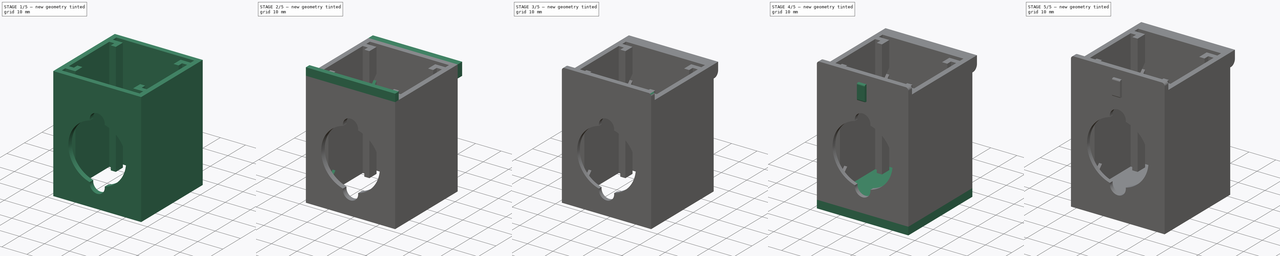
[diagram: build sequence overview — one tinted view per stage of 5, left to right]
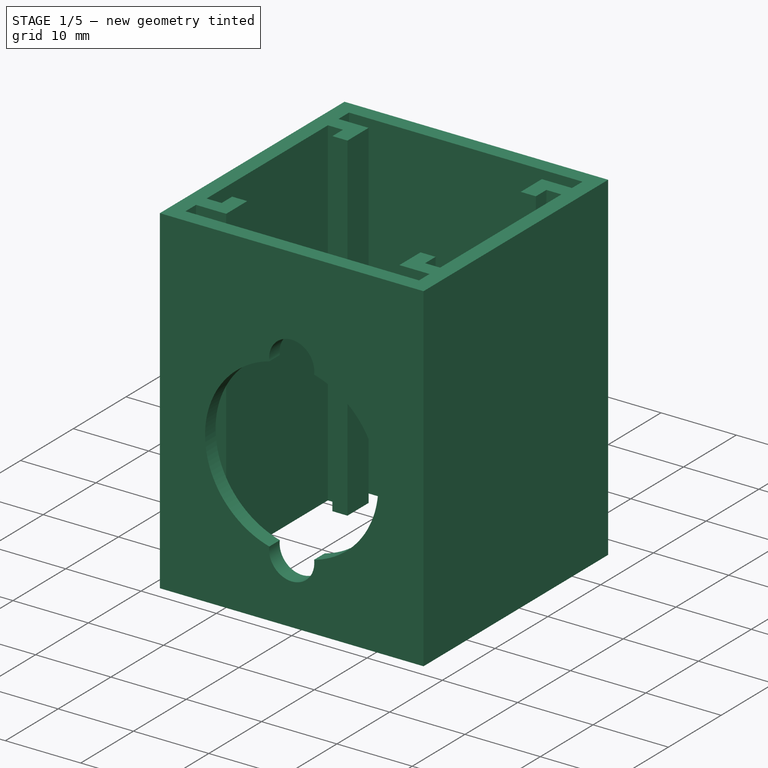
[diagram: stage 1 of 5 — iso view after this stage's code; geometry added in this stage tinted green]
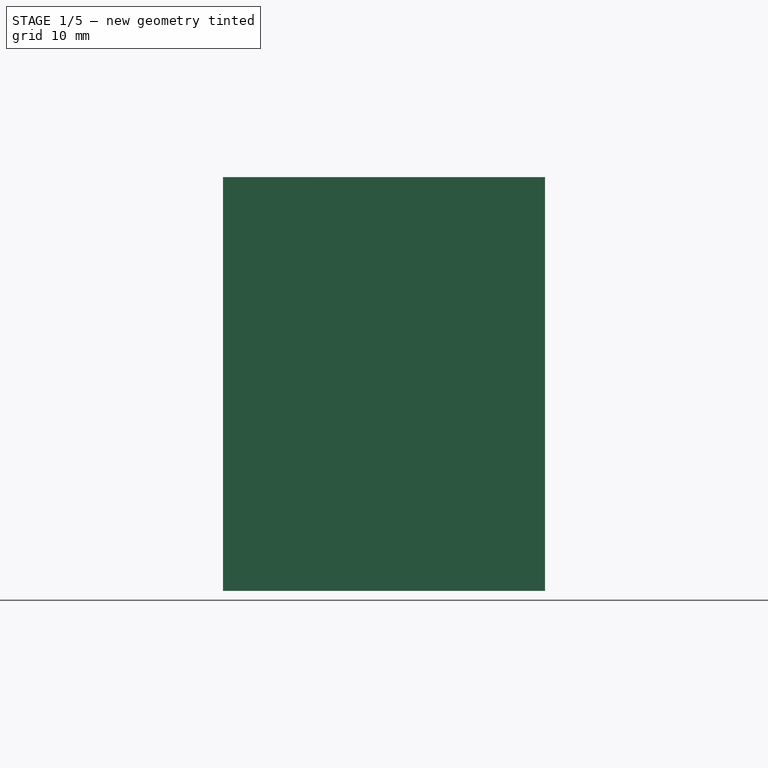
[diagram: stage 1 of 5 — front view after this stage's code; geometry added in this stage tinted green]
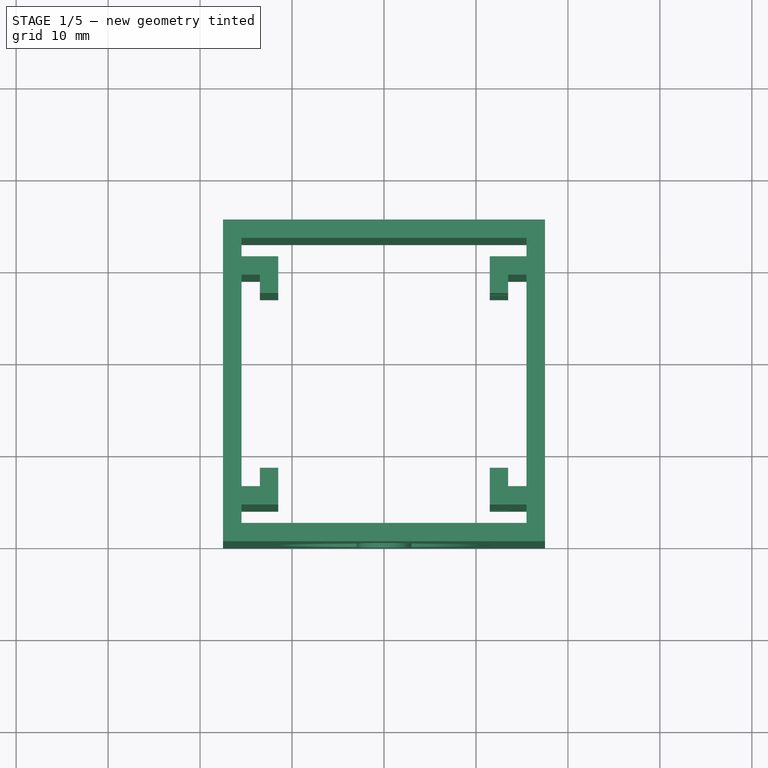
[diagram: stage 1 of 5 — top view after this stage's code; geometry added in this stage tinted green]
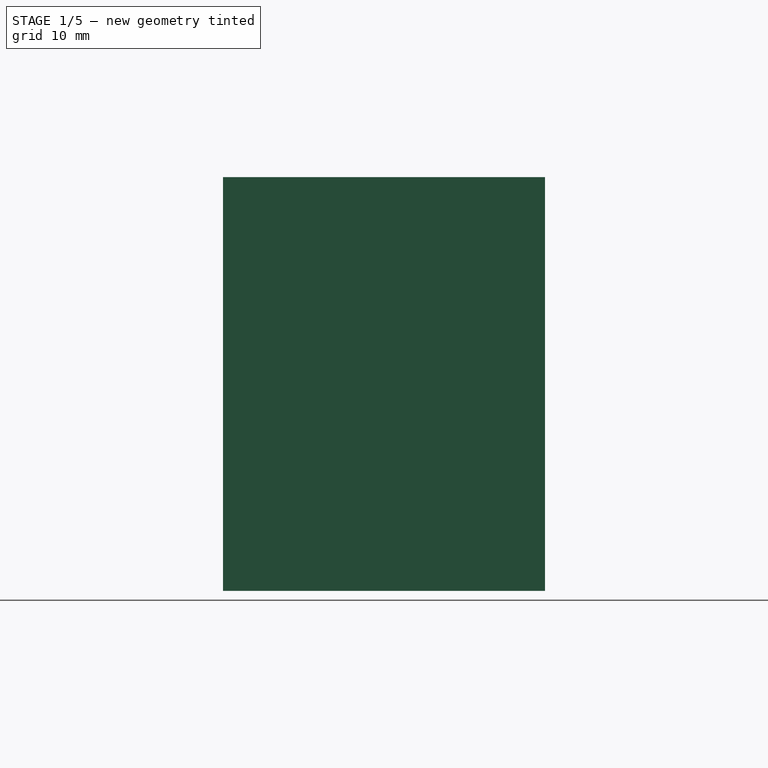
[diagram: stage 1 of 5 — right view after this stage's code; geometry added in this stage tinted green]
FCSTD DOCUMENT  (FreeCAD 0.14R3347 (Git))
Label: light-box
License: CC-BY 3.0
LicenseURL: http://creativecommons.org/licenses/by/3.0/
objects: Sketcher::SketchObject×9, PartDesign::Pad×6, PartDesign::Fillet×4, PartDesign::Pocket×3, Part::Feature×2, PartDesign::Chamfer×1, Part::MultiFuse×1
note: 35 computed .brp shape members not serialized (recipe doc carries the construction recipe); baked Part::Feature solids carry a one-line shape summary decoded from their .brp

FEATURE [Sketcher::SketchObject] Sketch
  sketch-geometry (43):
    g0: LineSegment StartX=-17.5 StartY=0 StartZ=0 EndX=17.5 EndY=0 EndZ=0
    g1: LineSegment StartX=17.5 StartY=0 StartZ=0 EndX=17.5 EndY=35 EndZ=0
    g2: LineSegment StartX=17.5 StartY=35 StartZ=0 EndX=-17.5 EndY=35 EndZ=0
    g3: LineSegment StartX=-17.5 StartY=35 StartZ=0 EndX=-17.5 EndY=0 EndZ=0
    g4: LineSegment StartX=15.5 StartY=33 StartZ=0 EndX=-15.5 EndY=33 EndZ=0
    g5: LineSegment [constr] StartX=-15.5 StartY=2 StartZ=0 EndX=-17.5 EndY=0 EndZ=0
    g6: LineSegment [constr] StartX=15.5 StartY=2 StartZ=0 EndX=17.5 EndY=0 EndZ=0
    g7: LineSegment [constr] StartX=-15.5 StartY=33 StartZ=0 EndX=-17.5 EndY=35 EndZ=0
    g8: LineSegment [constr] StartX=15.5 StartY=33 StartZ=0 EndX=17.5 EndY=35 EndZ=0
    g9: LineSegment StartX=-15.5 StartY=31 StartZ=0 EndX=-11.5 EndY=31 EndZ=0
    g10: LineSegment StartX=-11.5 StartY=31 StartZ=0 EndX=-11.5 EndY=27 EndZ=0
    g11: LineSegment StartX=-11.5 StartY=27 StartZ=0 EndX=-13.5 EndY=27 EndZ=0
    g12: LineSegment StartX=-13.5 StartY=27 StartZ=0 EndX=-13.5 EndY=29 EndZ=0
    g13: LineSegment StartX=-13.5 StartY=29 StartZ=0 EndX=-15.5 EndY=29 EndZ=0
    g14: LineSegment StartX=-15.5 StartY=31 StartZ=0 EndX=-15.5 EndY=33 EndZ=0
    g15: LineSegment [constr] StartX=-13.5 StartY=29 StartZ=0 EndX=-13.5 EndY=31 EndZ=0
    g16: LineSegment StartX=15.5 StartY=33 StartZ=0 EndX=15.5 EndY=31 EndZ=0
    g17: LineSegment StartX=15.5 StartY=31 StartZ=0 EndX=13.5 EndY=31 EndZ=0
    g18: LineSegment StartX=13.5 StartY=31 StartZ=0 EndX=11.5 EndY=31 EndZ=0
    g19: LineSegment StartX=11.5 StartY=31 StartZ=0 EndX=11.5 EndY=29 EndZ=0
    g20: LineSegment StartX=11.5 StartY=29 StartZ=0 EndX=11.5 EndY=27 EndZ=0
    g21: LineSegment StartX=11.5 StartY=27 StartZ=0 EndX=13.5 EndY=27 EndZ=0
    g22: LineSegment StartX=13.5 StartY=27 StartZ=0 EndX=13.5 EndY=29 EndZ=0
    g23: LineSegment StartX=13.5 StartY=29 StartZ=0 EndX=15.5 EndY=29 EndZ=0
    g24: LineSegment StartX=15.5 StartY=29 StartZ=0 EndX=15.5 EndY=6 EndZ=0
    g25: LineSegment StartX=15.5 StartY=6 StartZ=0 EndX=13.5 EndY=6 EndZ=0
    g26: LineSegment StartX=13.5 StartY=6 StartZ=0 EndX=13.5 EndY=8 EndZ=0
    g27: LineSegment StartX=13.5 StartY=8 StartZ=0 EndX=11.5 EndY=8 EndZ=0
    g28: LineSegment StartX=11.5 StartY=4 StartZ=0 EndX=15.5 EndY=4 EndZ=0
    g29: LineSegment StartX=15.5 StartY=4 StartZ=0 EndX=15.5 EndY=2 EndZ=0
    g30: LineSegment StartX=-15.5 StartY=29 StartZ=0 EndX=-15.5 EndY=6 EndZ=0
    g31: LineSegment StartX=-15.5 StartY=6 StartZ=0 EndX=-13.5 EndY=6 EndZ=0
    g32: LineSegment StartX=-13.5 StartY=6 StartZ=0 EndX=-13.5 EndY=8 EndZ=0
    g33: LineSegment StartX=-13.5 StartY=8 StartZ=0 EndX=-11.5 EndY=8 EndZ=0
    g34: LineSegment StartX=-11.5 StartY=8 StartZ=0 EndX=-11.5 EndY=6 EndZ=0
    g35: LineSegment StartX=-11.5 StartY=6 StartZ=0 EndX=-11.5 EndY=4 EndZ=0
    g36: LineSegment StartX=-11.5 StartY=4 StartZ=0 EndX=-13.5 EndY=4 EndZ=0
    g37: LineSegment StartX=-13.5 StartY=4 StartZ=0 EndX=-15.5 EndY=4 EndZ=0
    g38: LineSegment StartX=-15.5 StartY=4 StartZ=0 EndX=-15.5 EndY=2 EndZ=0
    g39: LineSegment StartX=11.5 StartY=8 StartZ=0 EndX=11.5 EndY=6 EndZ=0
    g40: LineSegment StartX=11.5 StartY=6 StartZ=0 EndX=11.5 EndY=4 EndZ=0
    g41: LineSegment StartX=-15.5 StartY=2 StartZ=0 EndX=15.5 EndY=2 EndZ=0
    g42: LineSegment [constr] StartX=-15.5 StartY=29 StartZ=0 EndX=-17.5 EndY=29 EndZ=0
  constraints (125):
    c: Coincident(g0,g1)
    c: Coincident(g1,g2)
    c: Coincident(g2,g3)
    c: Coincident(g3,g0)
    c: Horizontal(g2)
    c: Vertical(g1)
    c: Vertical(g3)
    c: PointOnObject(g0,g-1)
    c: DistanceX(g0) = 35
    c: DistanceY(g3) = -35
    c: Horizontal(g4)
    c: Coincident(g5,g0)
    c: Coincident(g6,g0)
    c: Coincident(g7,g4)
    c: Coincident(g7,g2)
    c: Coincident(g8,g1)
    c: Equal(g7,g8)
    c: Equal(g8,g6)
    c: Equal(g6,g5)
    c: Symmetric(g0,g0,g-2)
    c: Horizontal(g9)
    c: Coincident(g9,g10)
    c: Vertical(g10)
    c: Coincident(g10,g11)
    c: Horizontal(g11)
    c: Coincident(g11,g12)
    c: Coincident(g12,g13)
    c: Horizontal(g13)
    c: Vertical(g12)
    c: Equal(g13,g12)
    c: Equal(g12,g11)
    c: DistanceX(g11) = -2
    c: Coincident(g14,g9)
    c: Coincident(g14,g4)
    c: Vertical(g14)
    c: Equal(g14,g13)
    c: Coincident(g15,g12)
    c: PointOnObject(g15,g9)
    c: Vertical(g15)
    c: Equal(g15,g13)
    c: DistanceY(g4,g2) = 2
    c: Coincident(g4,g16)
    c: Vertical(g16)
    c: Coincident(g16,g17)
    c: Horizontal(g17)
    c: Coincident(g17,g18)
    c: Horizontal(g18)
    c: Coincident(g18,g19)
    c: Coincident(g19,g20)
    c: Vertical(g20)
    c: Coincident(g20,g21)
    c: Horizontal(g21)
    c: Coincident(g21,g22)
    c: Vertical(g22)
    c: Coincident(g22,g23)
    c: Horizontal(g23)
    c: Coincident(g23,g24)
    c: Vertical(g24)
    c: Coincident(g24,g25)
    c: Coincident(g25,g26)
    c: Vertical(g26)
    c: Coincident(g26,g27)
    c: Horizontal(g27)
    c: Horizontal(g28)
    c: Coincident(g28,g29)
    c: Vertical(g29)
    c: Horizontal(g25)
    c: Equal(g27,g25)
    c: Equal(g25,g26)
    c: Equal(g26,g21)
    c: Equal(g21,g23)
    c: Equal(g23,g22)
    c: Equal(g22,g20)
    c: Equal(g20,g19)
    c: Equal(g19,g18)
    c: Equal(g18,g17)
    c: Equal(g17,g16)
    c: Equal(g16,g11)
    c: Vertical(g19)
    c: Coincident(g4,g8)
    c: Equal(g29,g26)
    c: Coincident(g13,g30)
    c: Vertical(g30)
    c: Coincident(g30,g31)
    c: Horizontal(g31)
    c: Coincident(g31,g32)
    c: Coincident(g32,g33)
    c: Horizontal(g33)
    c: Coincident(g33,g34)
    c: Coincident(g34,g35)
    c: Vertical(g35)
    c: Coincident(g35,g36)
    c: Horizontal(g36)
    c: Coincident(g36,g37)
    c: Horizontal(g37)
    c: Coincident(g37,g38)
    c: Vertical(g38)
    c: Vertical(g34)
    c: Vertical(g32)
    c: Equal(g33,g32)
    c: Equal(g32,g31)
    c: Equal(g31,g37)
    c: Equal(g37,g36)
    c: Equal(g36,g35)
    c: Equal(g35,g34)
    c: Equal(g34,g11)
    c: Equal(g30,g24)
    c: Coincident(g27,g39)
    c: Vertical(g39)
    c: Coincident(g39,g40)
    c: Coincident(g40,g28)
    c: Vertical(g40)
    c: Equal(g40,g39)
    c: Equal(g39,g27)
    c: Equal(g38,g11)
    c: Coincident(g38,g5)
    c: Coincident(g6,g29)
    c: Coincident(g41,g6)
    c: Horizontal(g41)
    c: Coincident(g41,g5)
    c: Equal(g41,g4)
    c: Coincident(g42,g13)
    c: PointOnObject(g42,g3)
    c: Horizontal(g42)
    c: Equal(g42,g11)
FEATURE [PartDesign::Pad] Pad
  Length = 45
  Length2 = 100
  Sketch = -> Sketch
  Type = 0
FEATURE [PartDesign::Pocket] Pocket
  Length = 2
  Sketch = -> Sketch002
  Type = 0
FEATURE [Sketcher::SketchObject] Sketch004
  Placement = pos=(11.5,0,0) rot=(0.57735,-0.57735,-0.57735;2.0944rad)
  Support = -> Pocket [Face39]
  sketch-geometry (9):
    g0: LineSegment StartX=-8 StartY=12.5 StartZ=0 EndX=-4 EndY=8.5 EndZ=0
    g1: LineSegment StartX=-4 StartY=8.5 StartZ=0 EndX=-4 EndY=6 EndZ=0
    g2: LineSegment StartX=-4 StartY=6 StartZ=0 EndX=-8 EndY=10 EndZ=0
    g3: LineSegment StartX=-8 StartY=10 StartZ=0 EndX=-8 EndY=12.5 EndZ=0
    g4: LineSegment StartX=-31 StartY=35.5 StartZ=0 EndX=-27 EndY=31.5 EndZ=0
    g5: LineSegment StartX=-27 StartY=31.5 StartZ=0 EndX=-27 EndY=29 EndZ=0
    g6: LineSegment StartX=-27 StartY=29 StartZ=0 EndX=-31 EndY=33 EndZ=0
    g7: LineSegment StartX=-31 StartY=33 StartZ=0 EndX=-31 EndY=35.5 EndZ=0
    g8: LineSegment [constr] StartX=-4 StartY=6 StartZ=0 EndX=-31 EndY=33 EndZ=0
  constraints (22):
    c: Coincident(g0,g1)
    c: Coincident(g1,g2)
    c: Coincident(g2,g3)
    c: Coincident(g3,g0)
    c: Angle(g3,g0) = 0.785398
    c: DistanceY(g-1,g2) = 10
    c: Parallel(g2,g0)
    c: DistanceX(g0,g0) = -4
    c: DistanceY(g1,g0) = 2.5
    c: DistanceX(g-1,g0) = -8
    c: Coincident(g4,g5)
    c: Coincident(g5,g6)
    c: Coincident(g6,g7)
    c: Coincident(g4,g7)
    c: Equal(g4,g6)
    c: Angle(g7,g4) = 0.785398
    c: Equal(g7,g1)
    c: Equal(g6,g2)
    c: DistanceX(g-1,g4) = -31
    c: Coincident(g8,g1)
    c: Coincident(g8,g6)
    c: Parallel(g8,g4)
FEATURE [PartDesign::Pocket] Pocket001
  Length = 2
  Sketch = -> Sketch004
  Type = 0
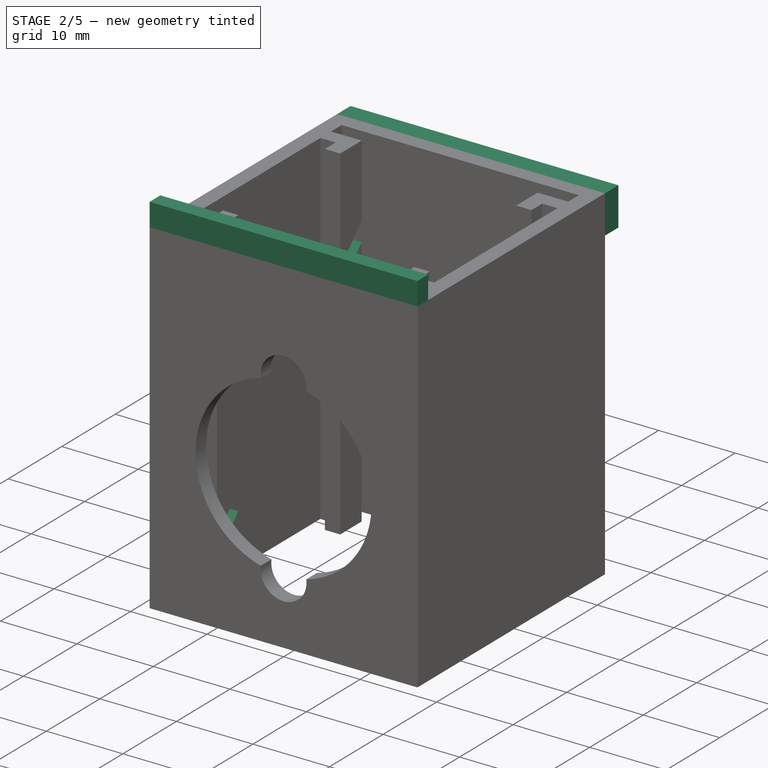
[diagram: stage 2 of 5 — iso view after this stage's code; geometry added in this stage tinted green]
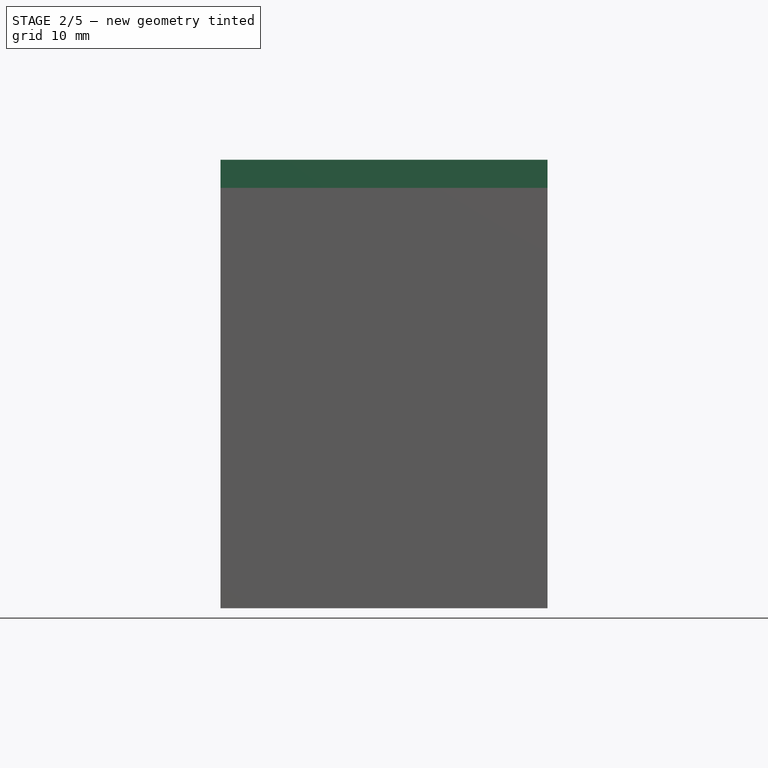
[diagram: stage 2 of 5 — front view after this stage's code; geometry added in this stage tinted green]
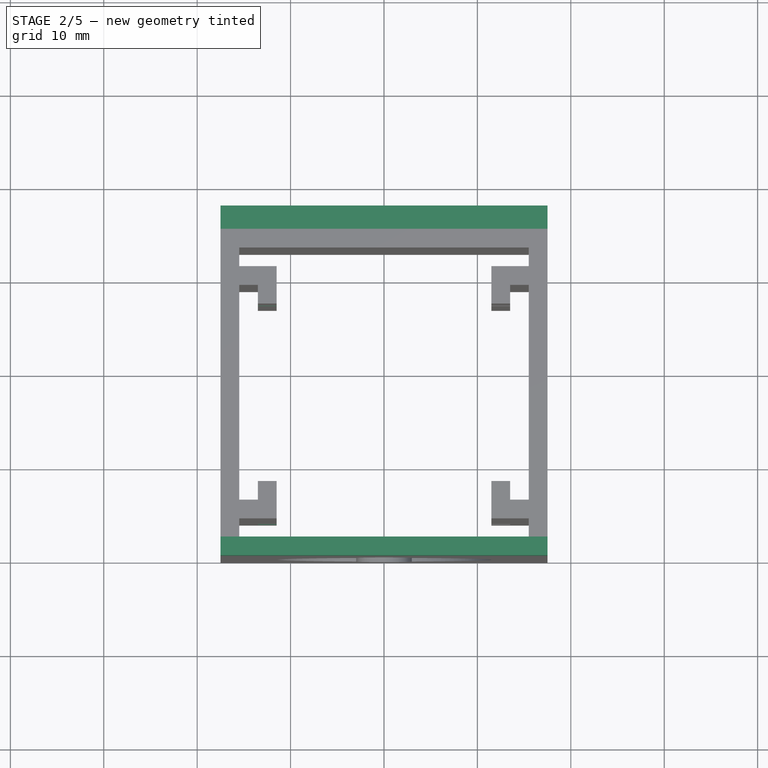
[diagram: stage 2 of 5 — top view after this stage's code; geometry added in this stage tinted green]
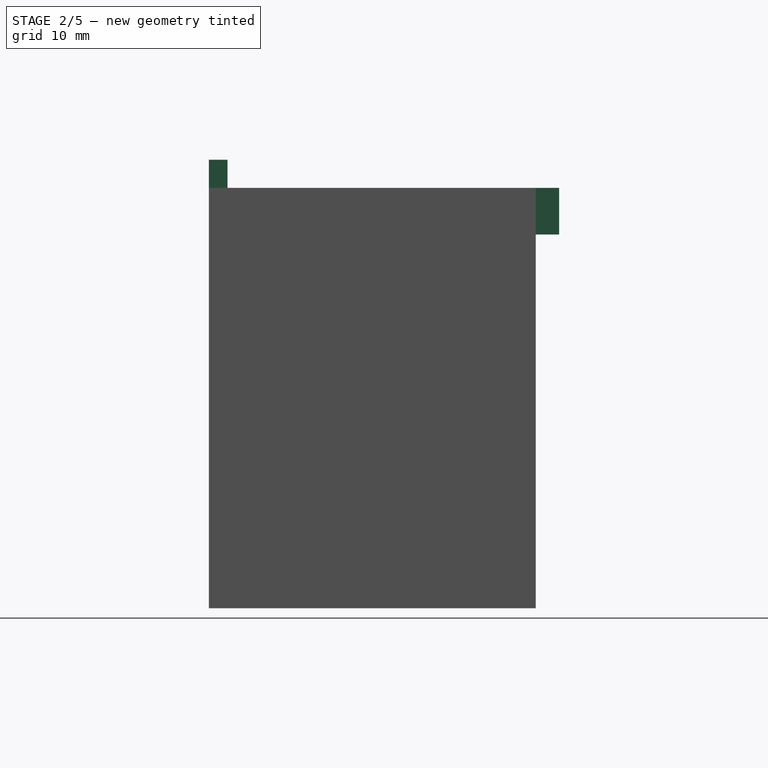
[diagram: stage 2 of 5 — right view after this stage's code; geometry added in this stage tinted green]
FEATURE [Sketcher::SketchObject] Sketch003
  Placement = pos=(-11.5,0,0) rot=(0.57735,0.57735,0.57735;2.0944rad)
  Support = -> Pocket001 [Face14]
  sketch-geometry (9):
    g0: LineSegment StartX=4 StartY=8.5 StartZ=0 EndX=8 EndY=12.5 EndZ=0
    g1: LineSegment StartX=8 StartY=12.5 StartZ=0 EndX=8 EndY=10 EndZ=0
    g2: LineSegment StartX=8 StartY=10 StartZ=0 EndX=4 EndY=6 EndZ=0
    g3: LineSegment StartX=4 StartY=6 StartZ=0 EndX=4 EndY=8.5 EndZ=0
    g4: LineSegment StartX=27 StartY=31.5 StartZ=0 EndX=31 EndY=35.5 EndZ=0
    g5: LineSegment StartX=31 StartY=35.5 StartZ=0 EndX=31 EndY=33 EndZ=0
    g6: LineSegment StartX=31 StartY=33 StartZ=0 EndX=27 EndY=29 EndZ=0
    g7: LineSegment StartX=27 StartY=29 StartZ=0 EndX=27 EndY=31.5 EndZ=0
    g8: LineSegment [constr] StartX=8 StartY=10 StartZ=0 EndX=27 EndY=29 EndZ=0
  constraints (22):
    c: Coincident(g0,g1)
    c: Coincident(g1,g2)
    c: Coincident(g2,g3)
    c: Coincident(g3,g0)
    c: Angle(g3,g0) = 2.35619
    c: DistanceY(g-1,g2) = 6
    c: Parallel(g2,g0)
    c: DistanceX(g0,g0) = -4
    c: DistanceY(g1,g0) = 2.5
    c: DistanceX(g-1,g0) = 4
    c: Coincident(g4,g5)
    c: Coincident(g5,g6)
    c: Coincident(g6,g7)
    c: Coincident(g4,g7)
    c: Equal(g4,g6)
    c: Angle(g7,g4) = 2.35619
    c: Equal(g7,g1)
    c: Equal(g6,g2)
    c: DistanceX(g-1,g4) = 27
    c: Coincident(g8,g1)
    c: Coincident(g8,g6)
    c: Parallel(g8,g4)
FEATURE [PartDesign::Pocket] Pocket002
  Length = 2
  Sketch = -> Sketch003
  Type = 0
FEATURE [Sketcher::SketchObject] Sketch007
  ExternalGeometry = -> [Pocket002]
  Placement = pos=(0,35,0) rot=(0,0.707107,0.707107;3.14159rad)
  Support = -> Pocket002 [Face10]
  sketch-geometry (4):
    g0: LineSegment StartX=-17.5 StartY=45 StartZ=0 EndX=17.5 EndY=45 EndZ=0
    g1: LineSegment StartX=17.5 StartY=45 StartZ=0 EndX=17.5 EndY=40 EndZ=0
    g2: LineSegment StartX=17.5 StartY=40 StartZ=0 EndX=-17.5 EndY=40 EndZ=0
    g3: LineSegment StartX=-17.5 StartY=40 StartZ=0 EndX=-17.5 EndY=45 EndZ=0
  constraints (11):
    c: Coincident(g0,g1)
    c: Coincident(g1,g2)
    c: Coincident(g2,g3)
    c: Coincident(g3,g0)
    c: Horizontal(g0)
    c: Horizontal(g2)
    c: Vertical(g1)
    c: Vertical(g3)
    c: Coincident(g0,g-3)
    c: Coincident(g0,g-3)
    c: DistanceY(g1) = -5
FEATURE [PartDesign::Pad] Pad004
  Length = 2.5
  Length2 = 100
  Sketch = -> Sketch007
  Type = 0
FEATURE [Sketcher::SketchObject] Sketch008
  ExternalGeometry = -> [Pad004]
  Placement = pos=(0,0,45) rot=(0,0,1;0rad)
  Support = -> Pad004 [Face4]
  sketch-geometry (4):
    g0: LineSegment StartX=-17.5 StartY=2 StartZ=0 EndX=17.5 EndY=2 EndZ=0
    g1: LineSegment StartX=17.5 StartY=2 StartZ=0 EndX=17.5 EndY=0 EndZ=0
    g2: LineSegment StartX=17.5 StartY=0 StartZ=0 EndX=-17.5 EndY=0 EndZ=0
    g3: LineSegment StartX=-17.5 StartY=0 StartZ=0 EndX=-17.5 EndY=2 EndZ=0
  constraints (11):
    c: Coincident(g0,g1)
    c: Coincident(g1,g2)
    c: Coincident(g2,g3)
    c: Coincident(g3,g0)
    c: Horizontal(g0)
    c: Horizontal(g2)
    c: Vertical(g1)
    c: Vertical(g3)
    c: Coincident(g2,g-3)
    c: Coincident(g1,g-4)
    c: DistanceY(g3) = 2
FEATURE [PartDesign::Pad] Pad005
  Length = 3
  Length2 = 100
  Sketch = -> Sketch008
  Type = 0
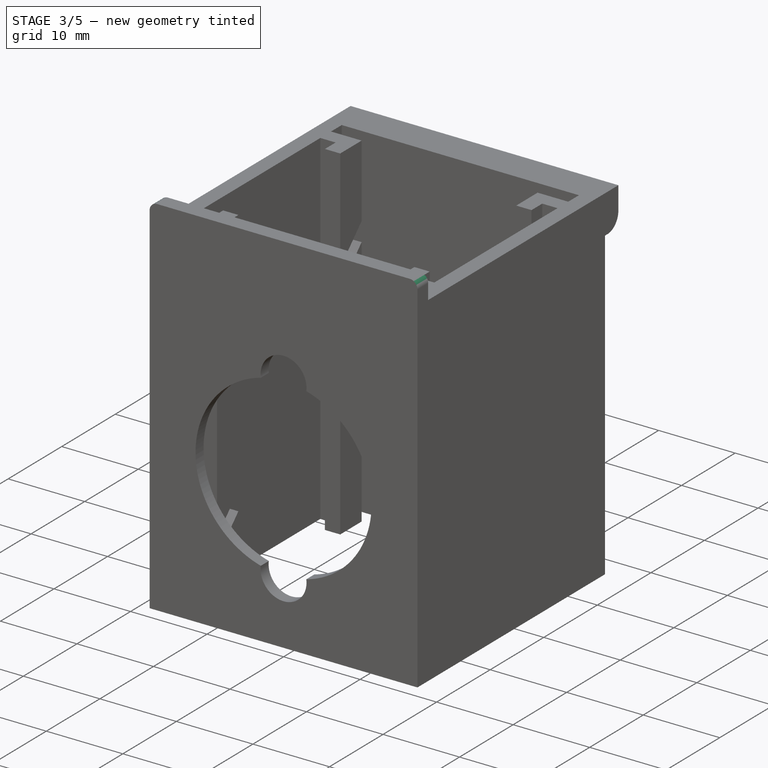
[diagram: stage 3 of 5 — iso view after this stage's code; geometry added in this stage tinted green]
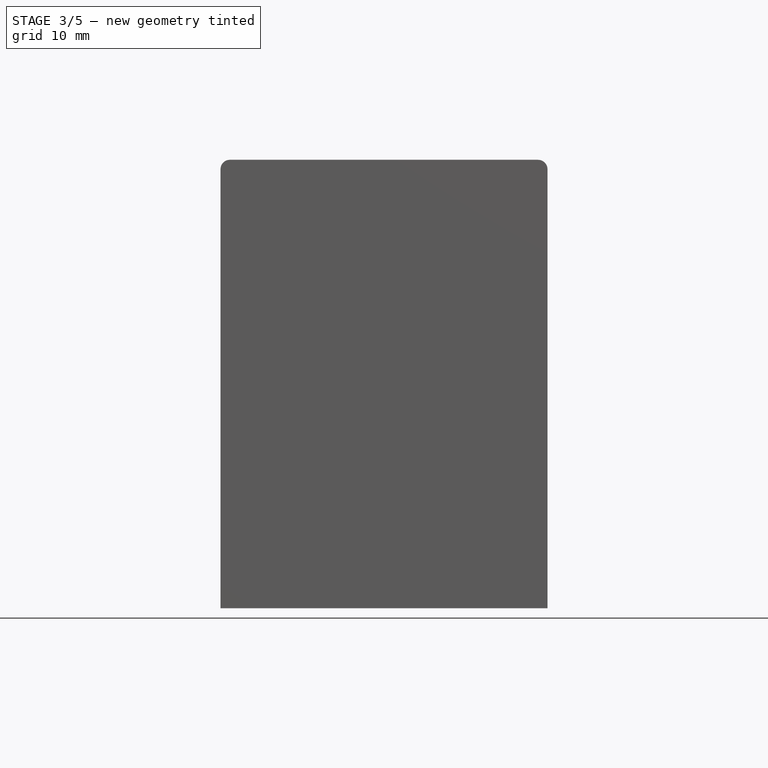
[diagram: stage 3 of 5 — front view after this stage's code; geometry added in this stage tinted green]
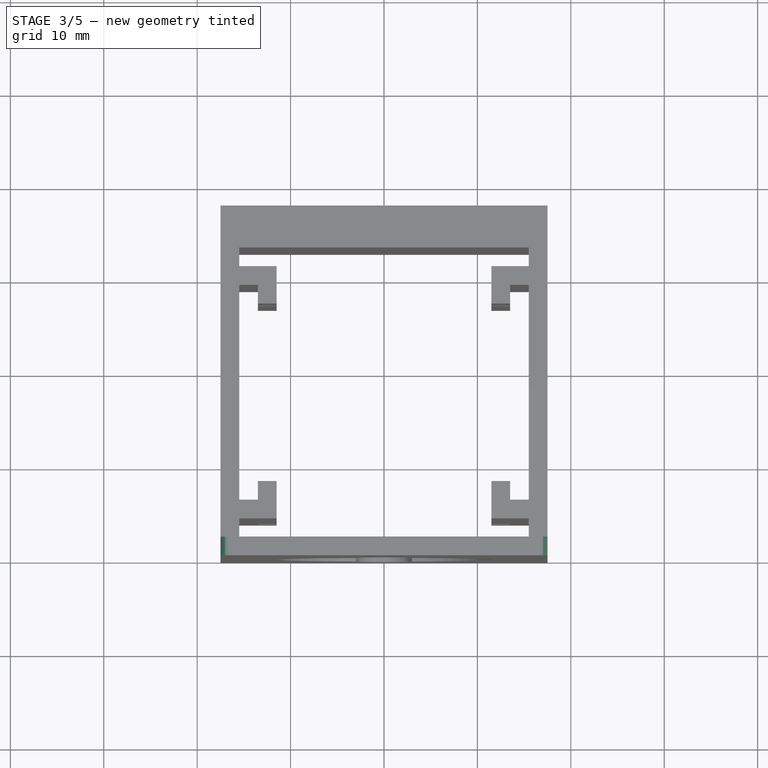
[diagram: stage 3 of 5 — top view after this stage's code; geometry added in this stage tinted green]
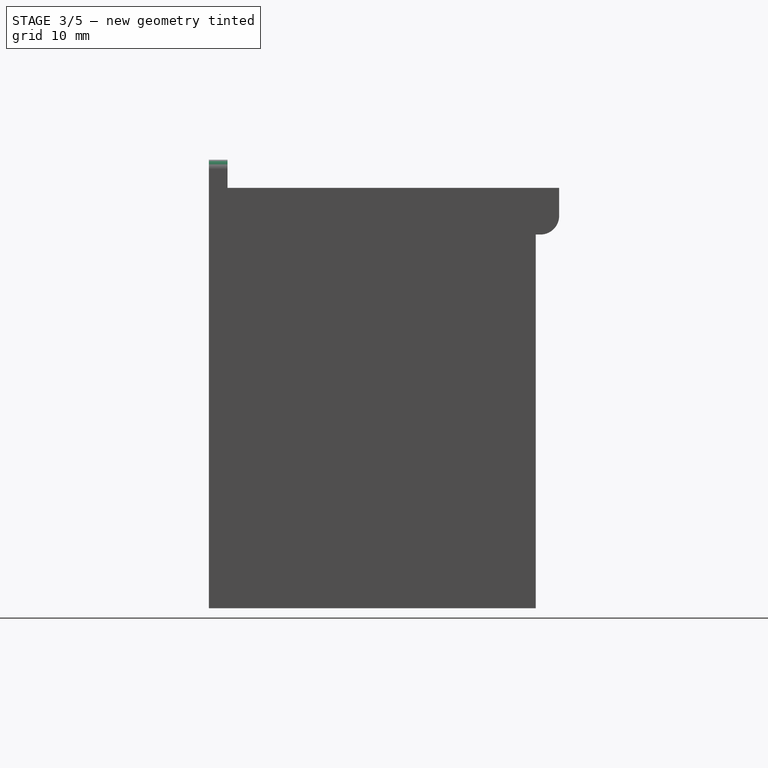
[diagram: stage 3 of 5 — right view after this stage's code; geometry added in this stage tinted green]
FEATURE [PartDesign::Fillet] Fillet
  Base = -> Pad005 [Edge177]
  Radius = 2
FEATURE [PartDesign::Fillet] Fillet001
  Base = -> Fillet [Edge65,Edge186]
  Radius = 1
FEATURE [PartDesign::Chamfer] Chamfer
  Base = -> Fillet001 [Edge63,Edge66,Edge65,Edge64]
  Size = 0.5
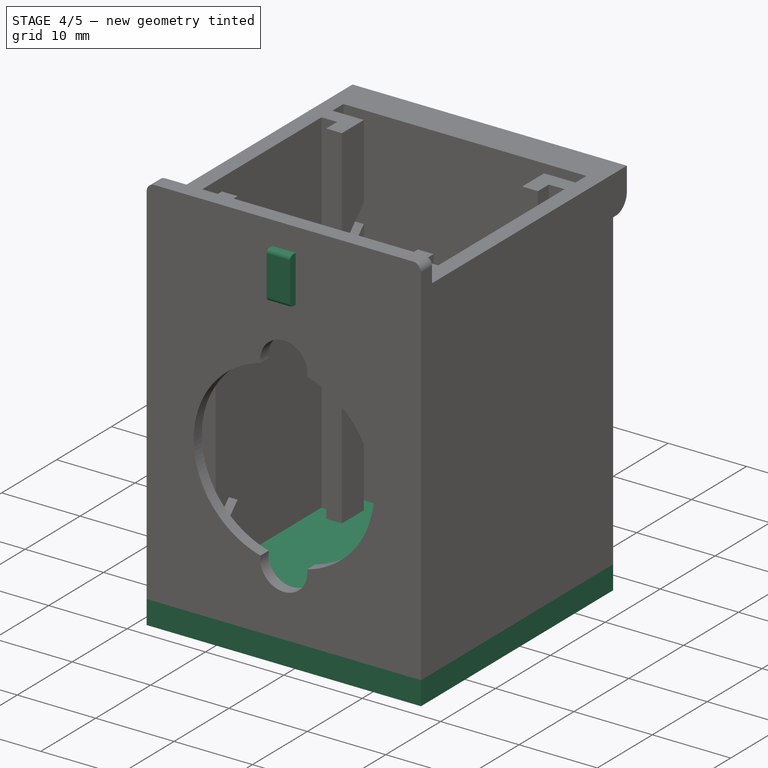
[diagram: stage 4 of 5 — iso view after this stage's code; geometry added in this stage tinted green]
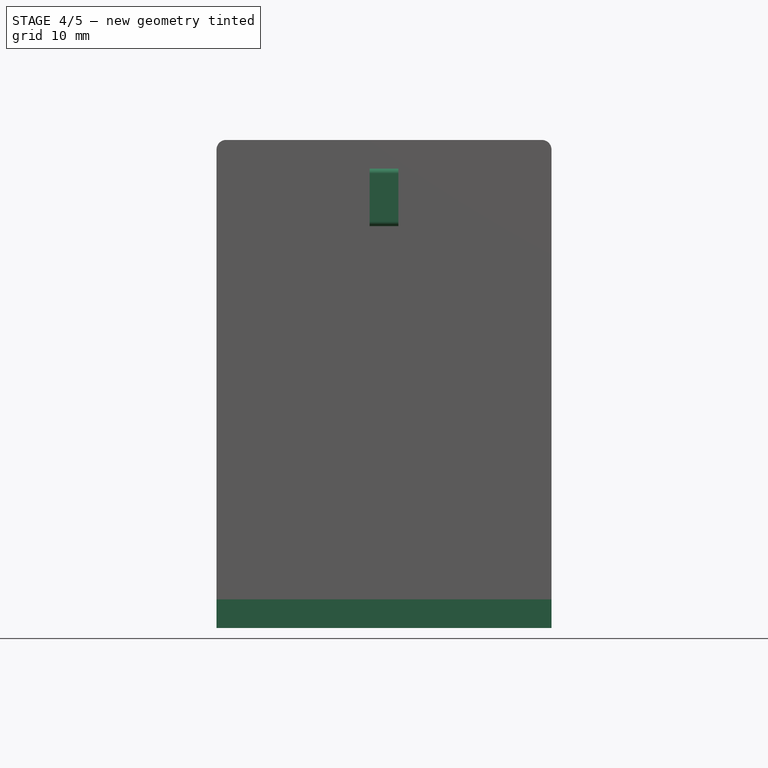
[diagram: stage 4 of 5 — front view after this stage's code; geometry added in this stage tinted green]
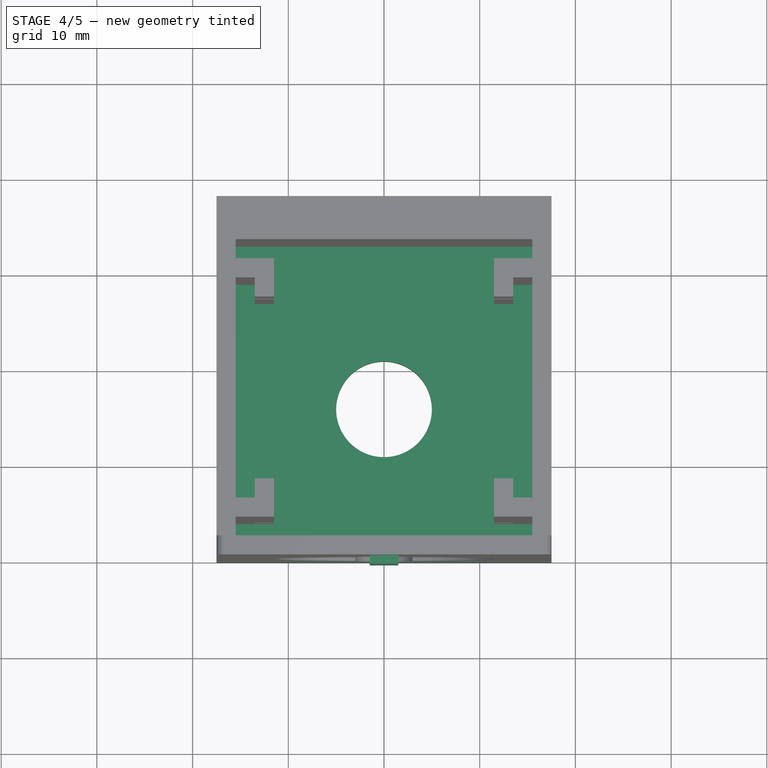
[diagram: stage 4 of 5 — top view after this stage's code; geometry added in this stage tinted green]
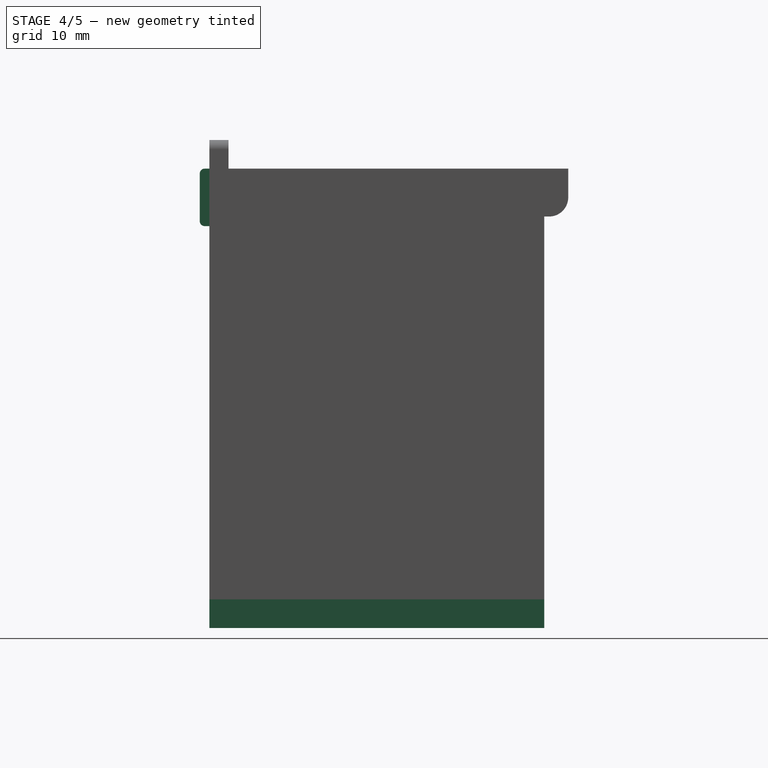
[diagram: stage 4 of 5 — right view after this stage's code; geometry added in this stage tinted green]
FEATURE [Sketcher::SketchObject] Sketch002
  Placement = pos=(0,0,0) rot=(1,0,0;1.5708rad)
  Support = -> Pad [Face1]
  sketch-geometry (4):
    g0: ArcOfCircle CenterX=0 CenterY=20 CenterZ=0 NormalX=0 NormalY=0 NormalZ=1 Radius=11.5 StartAngle=4.974 EndAngle=7.59237
    g1: ArcOfCircle CenterX=0 CenterY=31.5 CenterZ=0 NormalX=0 NormalY=0 NormalZ=1 Radius=3 StartAngle=6.15238 EndAngle=9.55559
    g2: ArcOfCircle CenterX=0 CenterY=8.5 CenterZ=0 NormalX=0 NormalY=0 NormalZ=1 Radius=3 StartAngle=3.01079 EndAngle=6.41399
    g3: ArcOfCircle CenterX=0 CenterY=20 CenterZ=0 NormalX=0 NormalY=0 NormalZ=1 Radius=11.5 StartAngle=1.83241 EndAngle=4.45077
  constraints (12):
    c: PointOnObject(g0,g-2)
    c: DistanceY(g-1,g0) = 20
    c: PointOnObject(g1,g-2)
    c: Coincident(g3,g2)
    c: Coincident(g0,g2)
    c: Equal(g0,g3)
    c: Coincident(g0,g1)
    c: Coincident(g3,g1)
    c: Coincident(g0,g3)
    c: PointOnObject(g2,g-2)
    c: Symmetric(g1,g2,g0)
    c: DistanceY(g0,g1) = 11.5
FEATURE [Sketcher::SketchObject] Sketch005
  Placement = pos=(0,0,0) rot=(1,0,0;3.14159rad)
  sketch-geometry (5):
    g0: LineSegment StartX=-17.5 StartY=0 StartZ=0 EndX=17.5 EndY=0 EndZ=0
    g1: LineSegment StartX=17.5 StartY=0 StartZ=0 EndX=17.5 EndY=-35 EndZ=0
    g2: LineSegment StartX=17.5 StartY=-35 StartZ=0 EndX=-17.5 EndY=-35 EndZ=0
    g3: LineSegment StartX=-17.5 StartY=-35 StartZ=0 EndX=-17.5 EndY=0 EndZ=0
    g4: Circle CenterX=0 CenterY=-16 CenterZ=0 NormalX=0 NormalY=0 NormalZ=1 Radius=5
  constraints (8):
    c: Coincident(g0,g1)
    c: Coincident(g1,g2)
    c: Coincident(g2,g3)
    c: Coincident(g3,g0)
    c: PointOnObject(g0,g-1)
    c: Symmetric(g0,g0,g-2)
    c: PointOnObject(g4,g-2)
    c: DistanceY(g-1,g4) = -16
FEATURE [PartDesign::Pad] Pad002
  Length = 3
  Length2 = 100
  Placement = pos=(0,0,0) rot=(1,0,0;3.14159rad)
  Sketch = -> Sketch005
  Type = 0
FEATURE [Sketcher::SketchObject] Sketch009
  ExternalGeometry = -> [Chamfer]
  Placement = pos=(0,0,0) rot=(1,0,0;1.5708rad)
  Support = -> Chamfer [Face16]
  sketch-geometry (4):
    g0: LineSegment StartX=-1.5 StartY=45 StartZ=0 EndX=1.5 EndY=45 EndZ=0
    g1: LineSegment StartX=1.5 StartY=45 StartZ=0 EndX=1.5 EndY=39 EndZ=0
    g2: LineSegment StartX=1.5 StartY=39 StartZ=0 EndX=-1.5 EndY=39 EndZ=0
    g3: LineSegment StartX=-1.5 StartY=39 StartZ=0 EndX=-1.5 EndY=45 EndZ=0
  constraints (12):
    c: Coincident(g0,g1)
    c: Coincident(g1,g2)
    c: Coincident(g2,g3)
    c: Coincident(g3,g0)
    c: Horizontal(g0)
    c: Horizontal(g2)
    c: Vertical(g1)
    c: Vertical(g3)
    c: Symmetric(g2,g1,g-2)
    c: DistanceX(g0) = 3
    c: DistanceY(g1) = -6
    c: PointOnObject(g0,g-3)
FEATURE [PartDesign::Pad] Pad006
  Length = 1
  Length2 = 100
  Sketch = -> Sketch009
  Type = 0
FEATURE [PartDesign::Fillet] Fillet003
  Base = -> Pad006 [Edge1,Edge3]
  Radius = 0.5
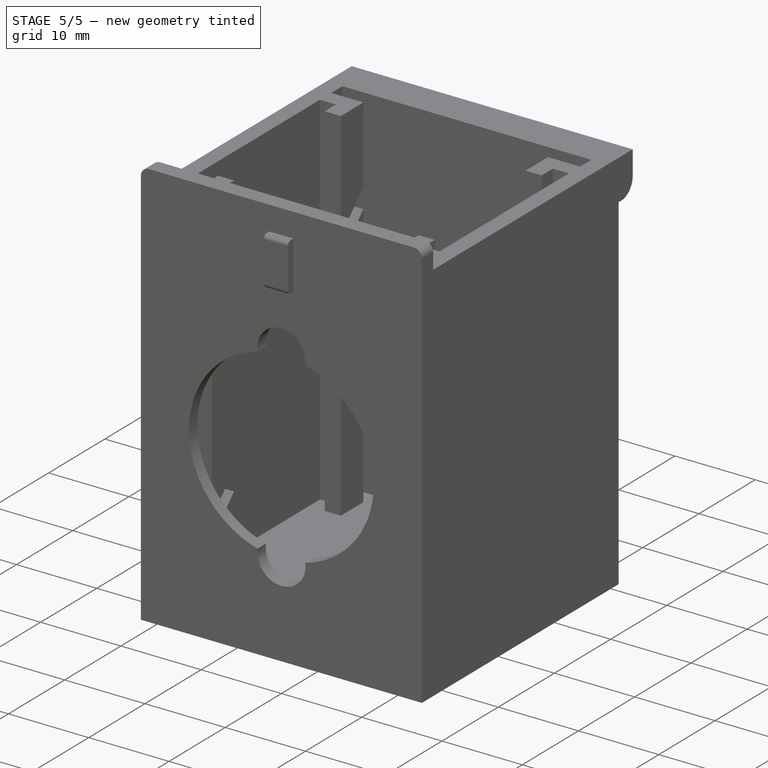
[diagram: stage 5 of 5 — iso view after this stage's code; geometry added in this stage tinted green]
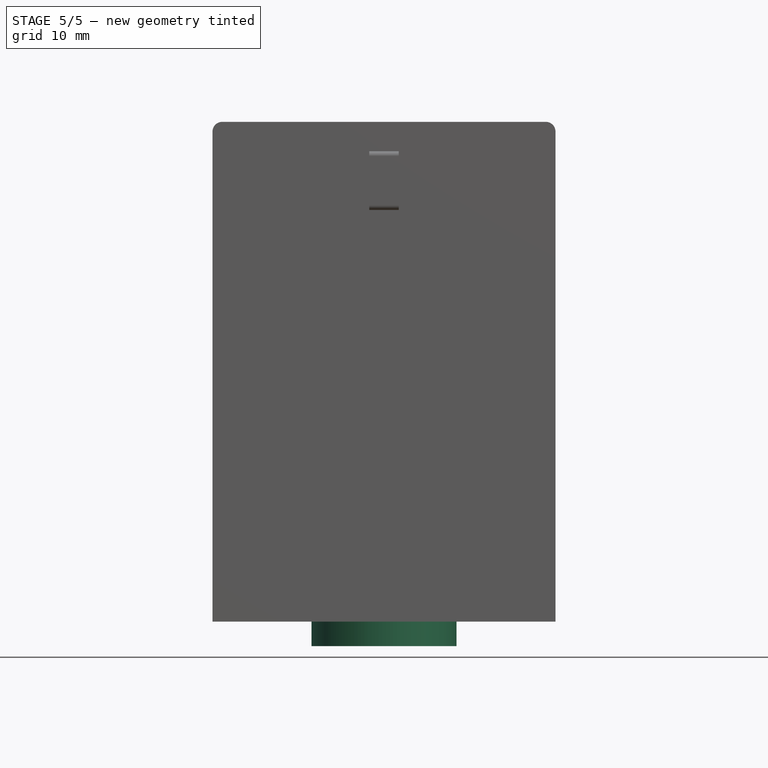
[diagram: stage 5 of 5 — front view after this stage's code; geometry added in this stage tinted green]
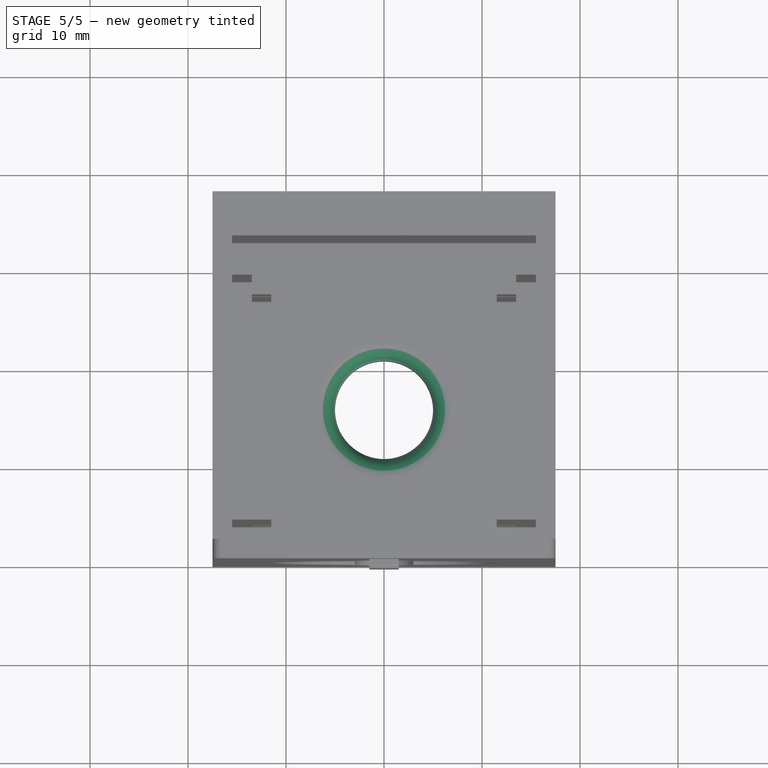
[diagram: stage 5 of 5 — top view after this stage's code; geometry added in this stage tinted green]
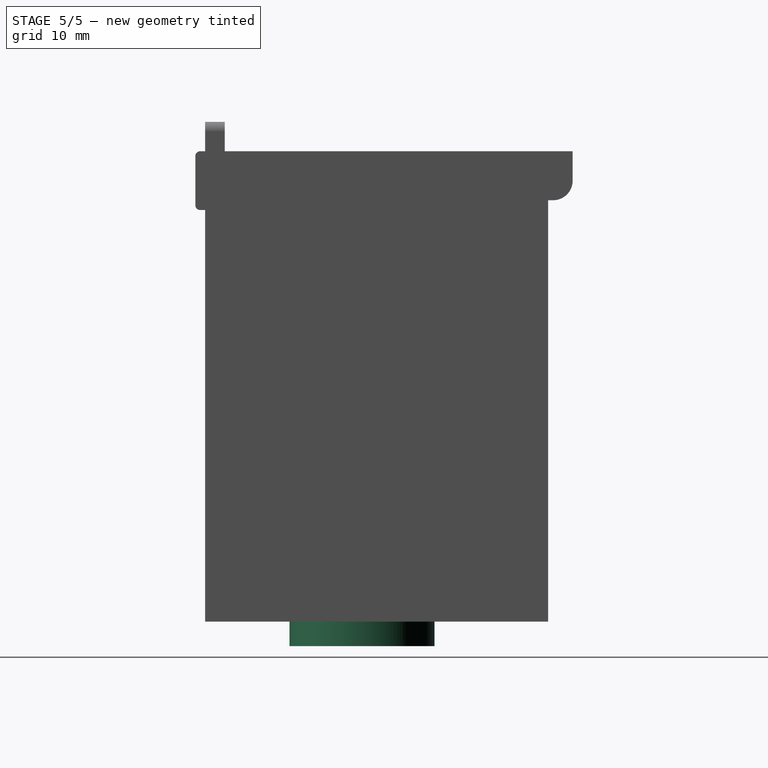
[diagram: stage 5 of 5 — right view after this stage's code; geometry added in this stage tinted green]
FEATURE [Sketcher::SketchObject] Sketch006
  ExternalGeometry = -> [Pad002]
  Placement = pos=(0,0,-3) rot=(1,0,0;3.14159rad)
  Support = -> Pad002 [Face7]
  sketch-geometry (2):
    g0: Circle CenterX=0 CenterY=-16 CenterZ=0 NormalX=0 NormalY=0 NormalZ=1 Radius=5
    g1: Circle CenterX=0 CenterY=-16 CenterZ=0 NormalX=0 NormalY=0 NormalZ=1 Radius=7.4
  constraints (4):
    c: Coincident(g1,g0)
    c: Radius(g1) = 7.4
    c: Equal(g0,g-3)
    c: Coincident(g0,g-3)
FEATURE [PartDesign::Pad] Pad003
  Length = 2.5
  Length2 = 100
  Placement = pos=(0,0,0) rot=(1,0,0;3.14159rad)
  Sketch = -> Sketch006
  Type = 0
FEATURE [PartDesign::Fillet] Fillet002
  Base = -> Pad003 [Edge12]
  Placement = pos=(0,0,0) rot=(1,0,0;3.14159rad)
  Radius = 2
FEATURE [Part::MultiFuse] Fusion
  Shapes = -> [Fillet003,Fillet002]
FEATURE [Part::Feature] Fusion_solid  label="Fusion (Solid)"
  shape: bbox 35 x 38.5 x 53.5 mm, 106 faces (baked)
FEATURE [Part::Feature] Fusion_solid001  label="Fusion (Solid)001"
  shape: bbox 35 x 38.5 x 53.5 mm, 84 faces (baked)
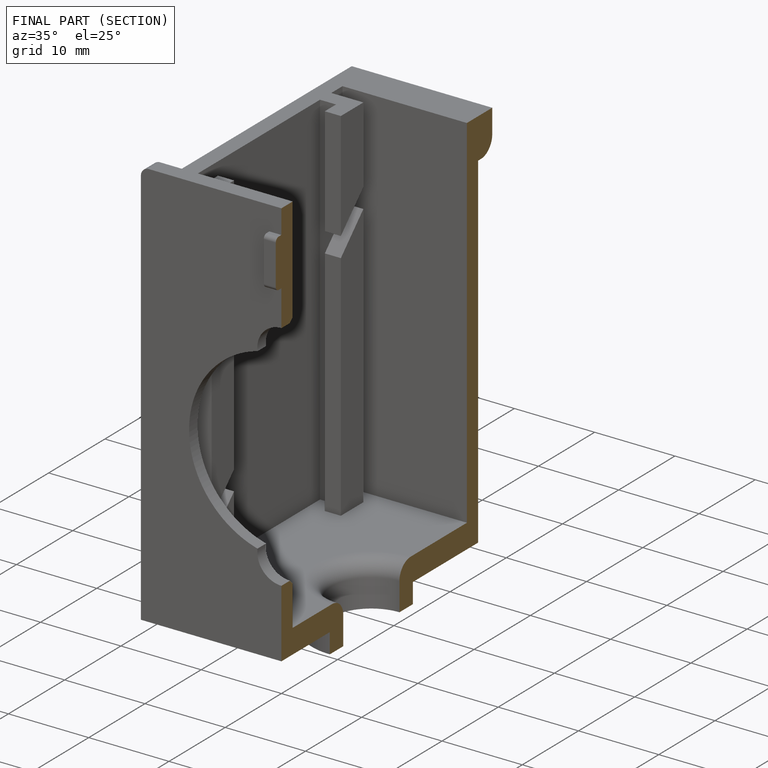
[diagram: finished part — half-section view (interior)]
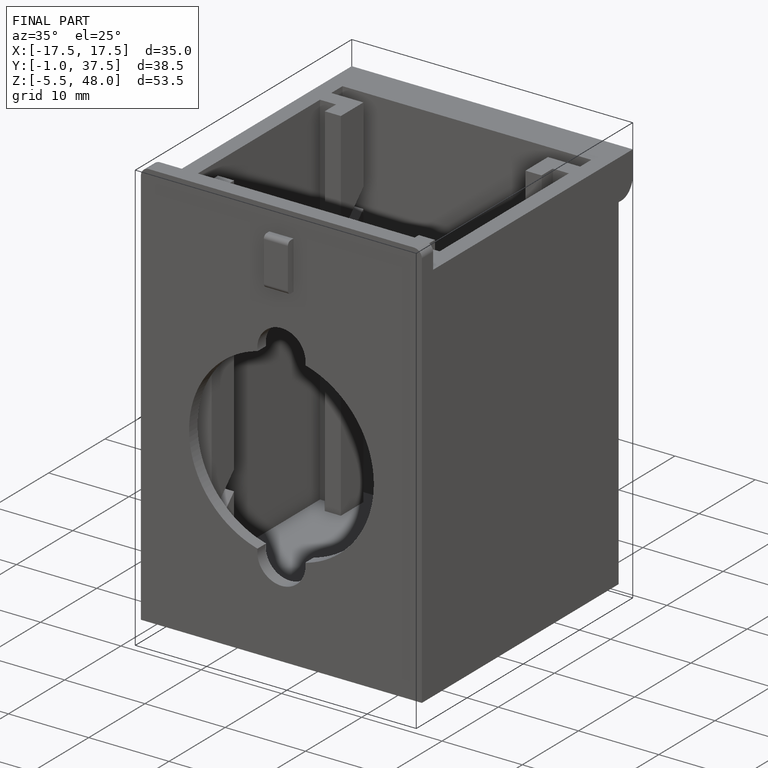
[diagram: finished part — iso view with bounding-box wireframe]
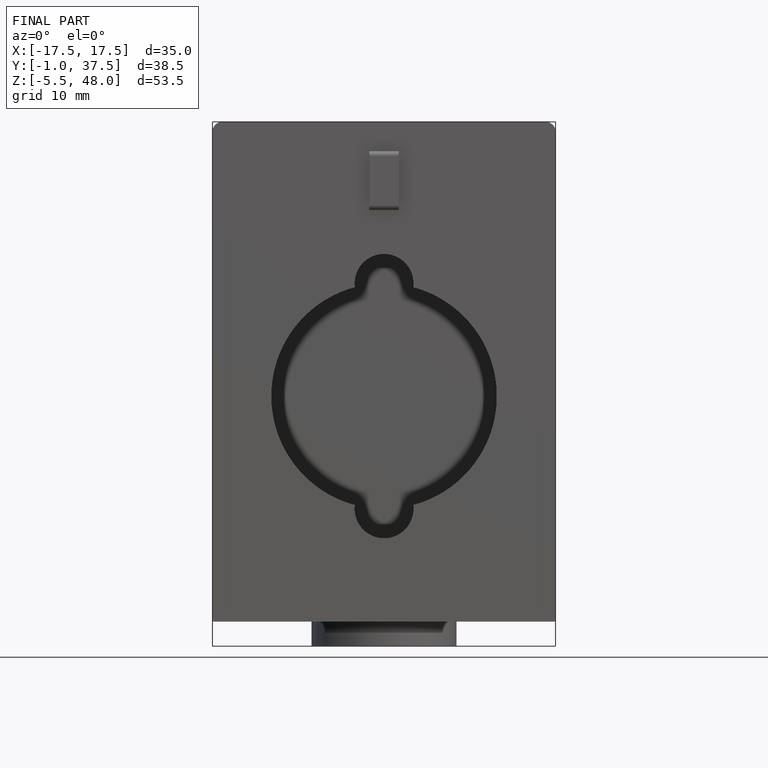
[diagram: finished part — front view with bounding-box wireframe]
